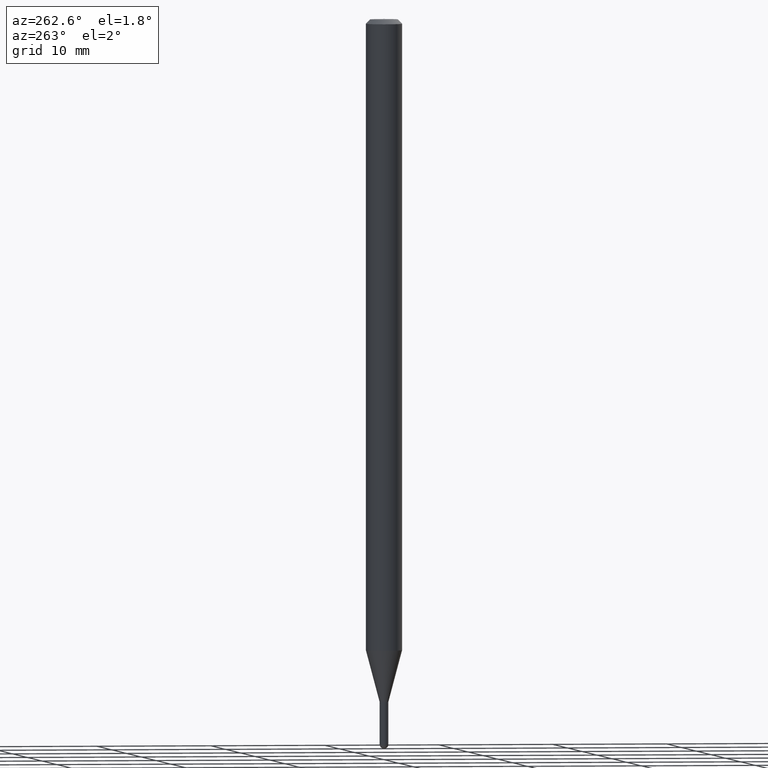
[diagram: clean part render]
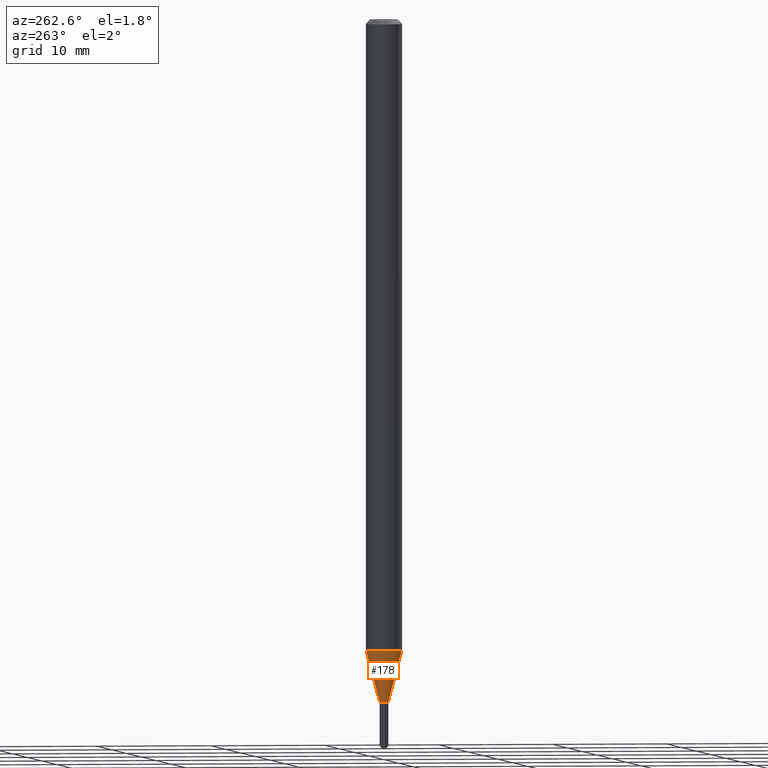
[diagram: same view with one face highlighted and labeled with its STEP entity id]
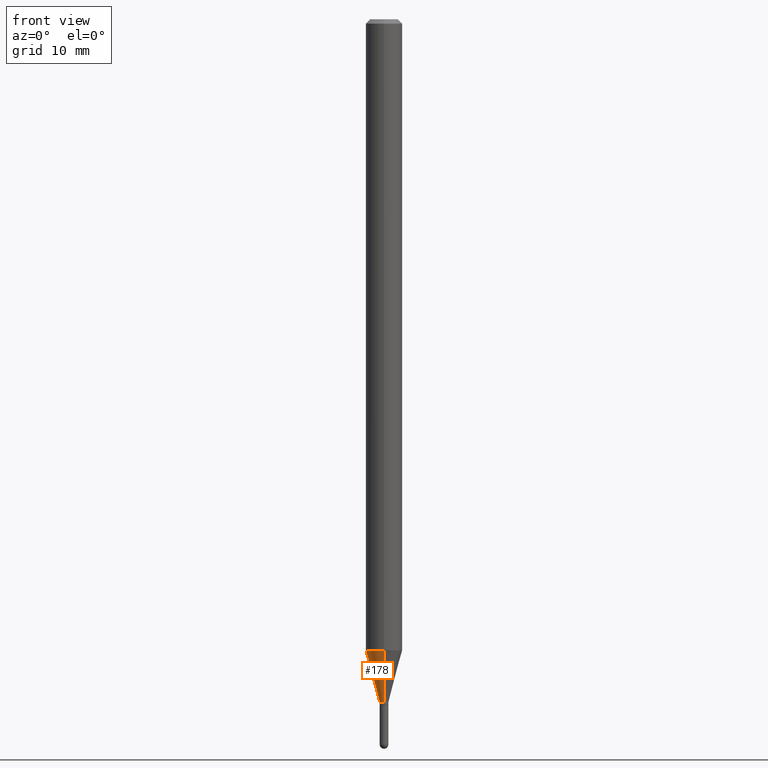
[diagram: same view with one face highlighted and labeled with its STEP entity id]
A machine part, auxiliary view. The second image highlights one B-rep face of the part: STEP entity #178.
A second angle (front view) of the same face is appended — the face is thin or edge-on in the first view.
In plain terms, the highlighted conical surface has half-angle 15 deg.
Its self-contained STEP definition (entity closure, byte-faithful):
#15 = DIRECTION ( 'NONE',  ( -2.445393450716331535E-29, 3.491589252163441310E-15, 1.000000000000000000 ) ) ;
#16 = ORIENTED_EDGE ( 'NONE', *, *, #489, .F. ) ;
#42 = AXIS2_PLACEMENT_3D ( 'NONE', #427, #357, #390 ) ;
#48 = DIRECTION ( 'NONE',  ( -1.807323732225331717E-15, -0.2588190451025184080, 0.9659258262890689783 ) ) ;
#51 = VECTOR ( 'NONE', #48, 39.37007874015748854 ) ;
#88 = CIRCLE ( 'NONE', #502, 0.01500000000000019894 ) ;
#99 = DIRECTION ( 'NONE',  ( -6.982962677686265133E-15, -1.000000000000000000, 0.000000000000000000 ) ) ;
#102 = LINE ( 'NONE', #252, #435 ) ;
#115 = VERTEX_POINT ( 'NONE', #220 ) ;
#128 = CARTESIAN_POINT ( 'NONE',  ( 4.440892098501152726E-16, 0.06249999999999242967, -2.162727586640479593 ) ) ;
#156 = EDGE_CURVE ( 'NONE', #339, #405, #199, .T. ) ;
#178 = ADVANCED_FACE ( 'NONE', ( #228 ), #207, .T. ) ;
#181 = DIRECTION ( 'NONE',  ( -2.445393450716331535E-29, 3.491589252163441310E-15, 1.000000000000000000 ) ) ;
#182 = AXIS2_PLACEMENT_3D ( 'NONE', #189, #181, #305 ) ;
#189 = CARTESIAN_POINT ( 'NONE',  ( 5.288719876054166459E-29, -7.551356396871277029E-15, -2.162727586640479593 ) ) ;
#199 = CIRCLE ( 'NONE', #182, 0.06250000000000000000 ) ;
#204 = LINE ( 'NONE', #364, #51 ) ;
#207 = CONICAL_SURFACE ( 'NONE', #42, 0.01500000000000019894, 0.2617993877991505181 ) ;
#220 = CARTESIAN_POINT ( 'NONE',  ( -1.047444401652381493E-16, -0.01500000000000836775, -2.339999999999999414 ) ) ;
#228 = FACE_OUTER_BOUND ( 'NONE', #508, .T. ) ;
#249 = ORIENTED_EDGE ( 'NONE', *, *, #156, .F. ) ;
#252 = CARTESIAN_POINT ( 'NONE',  ( 1.065814103640736462E-16, 0.01499999999999202839, -2.339999999999999414 ) ) ;
#261 = CARTESIAN_POINT ( 'NONE',  ( 5.722220674676214346E-29, -8.170318850062451766E-15, -2.339999999999999414 ) ) ;
#305 = DIRECTION ( 'NONE',  ( -6.982962677686265922E-15, -1.000000000000000000, 4.370956789862821150E-15 ) ) ;
#312 = EDGE_CURVE ( 'NONE', #115, #405, #204, .T. ) ;
#321 = CARTESIAN_POINT ( 'NONE',  ( -4.364351673553388650E-16, -0.06250000000000757727, -2.162727586640479149 ) ) ;
#339 = VERTEX_POINT ( 'NONE', #128 ) ;
#357 = DIRECTION ( 'NONE',  ( -2.445393450716331535E-29, 3.491589252163441310E-15, 1.000000000000000000 ) ) ;
#364 = CARTESIAN_POINT ( 'NONE',  ( -1.047444401652381493E-16, -0.01500000000000836775, -2.339999999999999414 ) ) ;
#370 = DIRECTION ( 'NONE',  ( 1.839019923739601893E-15, 0.2588190451025252359, 0.9659258262890670910 ) ) ;
#390 = DIRECTION ( 'NONE',  ( -6.982962677686265133E-15, -1.000000000000000000, 0.000000000000000000 ) ) ;
#405 = VERTEX_POINT ( 'NONE', #321 ) ;
#407 = VERTEX_POINT ( 'NONE', #481 ) ;
#427 = CARTESIAN_POINT ( 'NONE',  ( 5.722220674676214346E-29, -8.170318850062451766E-15, -2.339999999999999414 ) ) ;
#435 = VECTOR ( 'NONE', #370, 39.37007874015748854 ) ;
#436 = ORIENTED_EDGE ( 'NONE', *, *, #312, .T. ) ;
#481 = CARTESIAN_POINT ( 'NONE',  ( 2.753353101070947306E-16, 0.01499999999999203013, -2.339999999999999414 ) ) ;
#489 = EDGE_CURVE ( 'NONE', #407, #339, #102, .T. ) ;
#498 = ORIENTED_EDGE ( 'NONE', *, *, #511, .T. ) ;
#502 = AXIS2_PLACEMENT_3D ( 'NONE', #261, #15, #99 ) ;
#508 = EDGE_LOOP ( 'NONE', ( #16, #498, #436, #249 ) ) ;
#511 = EDGE_CURVE ( 'NONE', #407, #115, #88, .T. ) ;